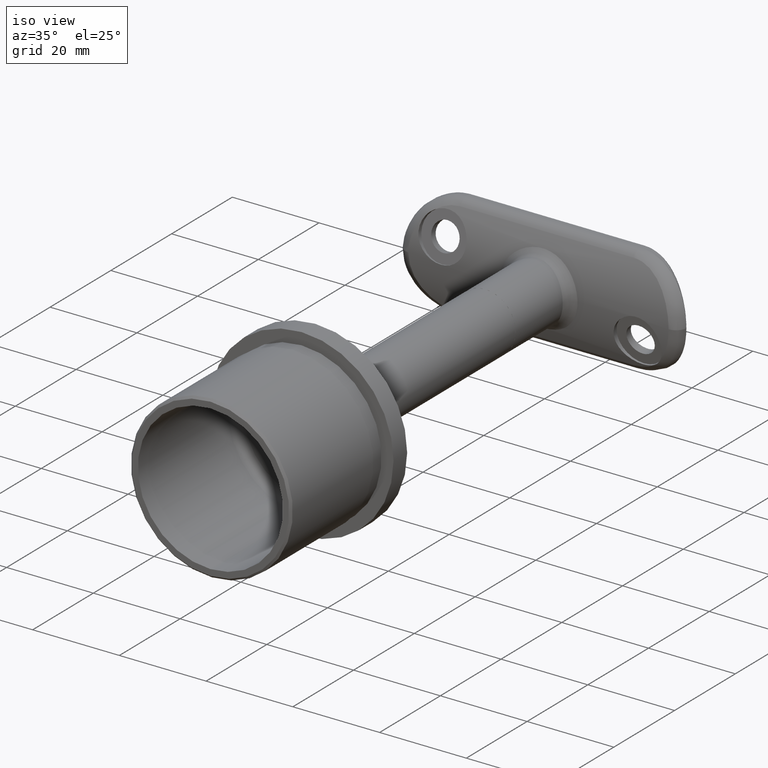
[diagram: clean part render]
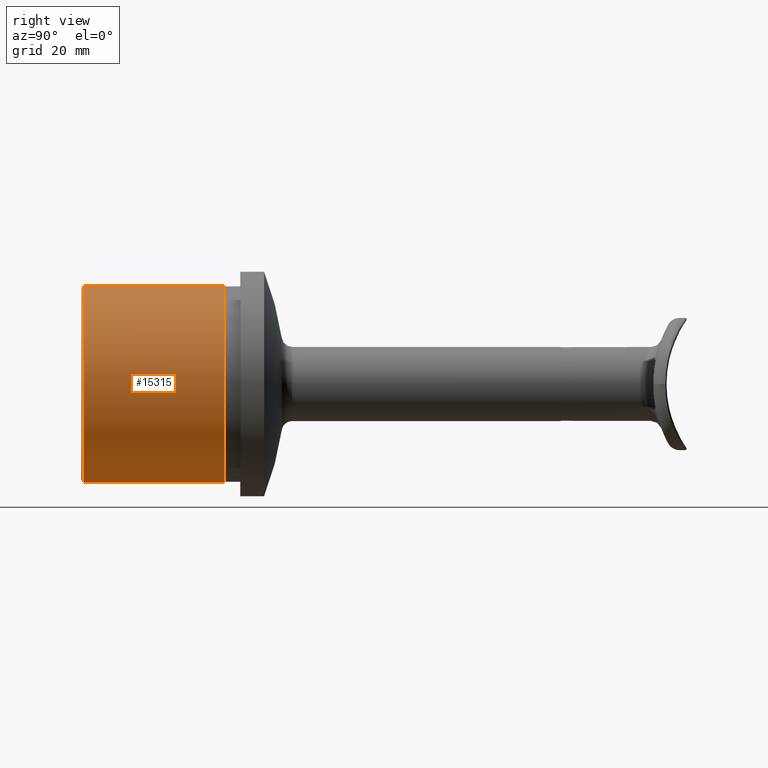
[diagram: tour spotlight — one face highlighted and labeled with its STEP entity id]
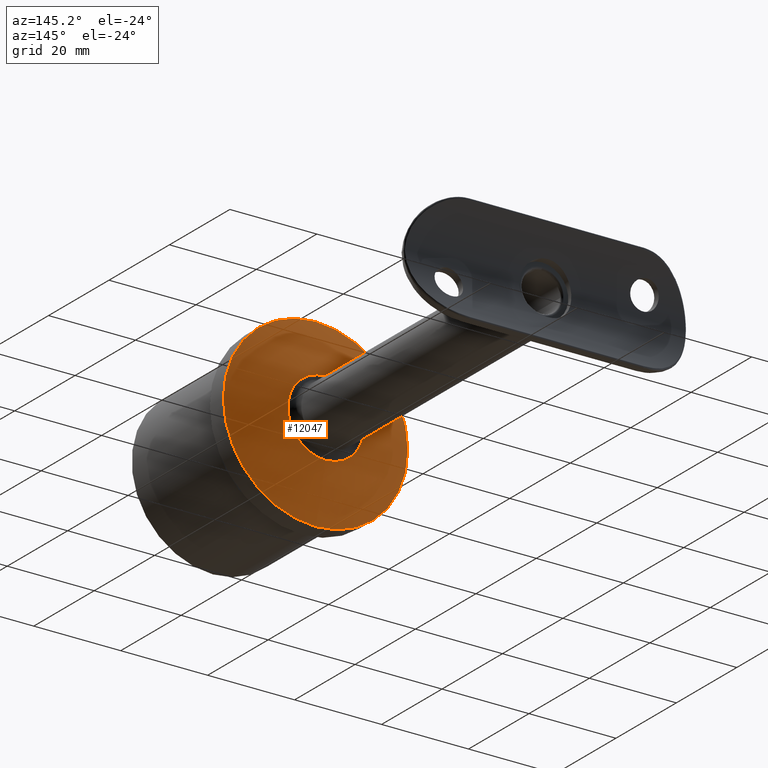
[diagram: tour spotlight — one face highlighted and labeled with its STEP entity id]
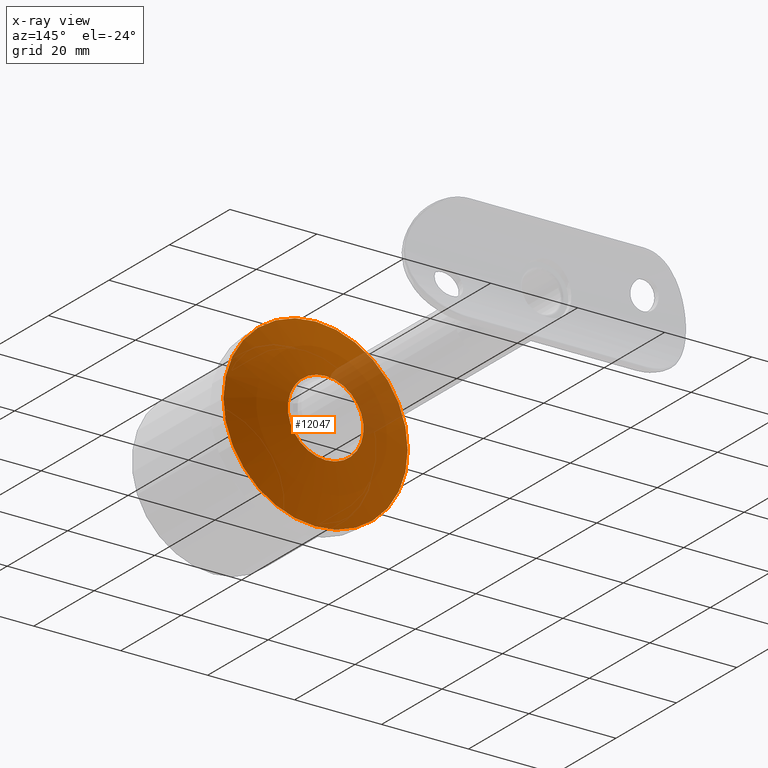
[diagram: x-ray of the same camera — body ghosted, this tour face saturated]
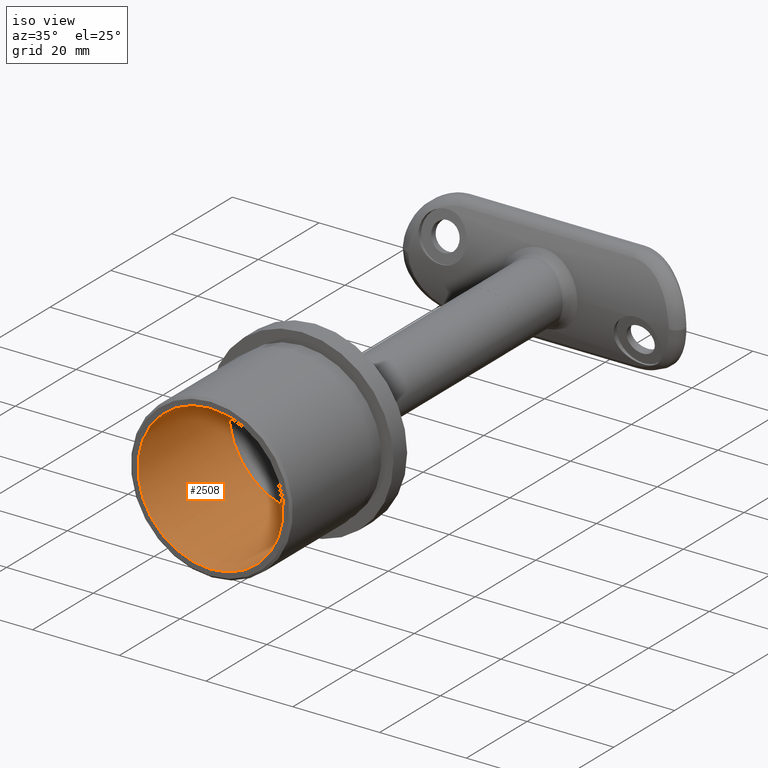
[diagram: tour spotlight — one face highlighted and labeled with its STEP entity id]
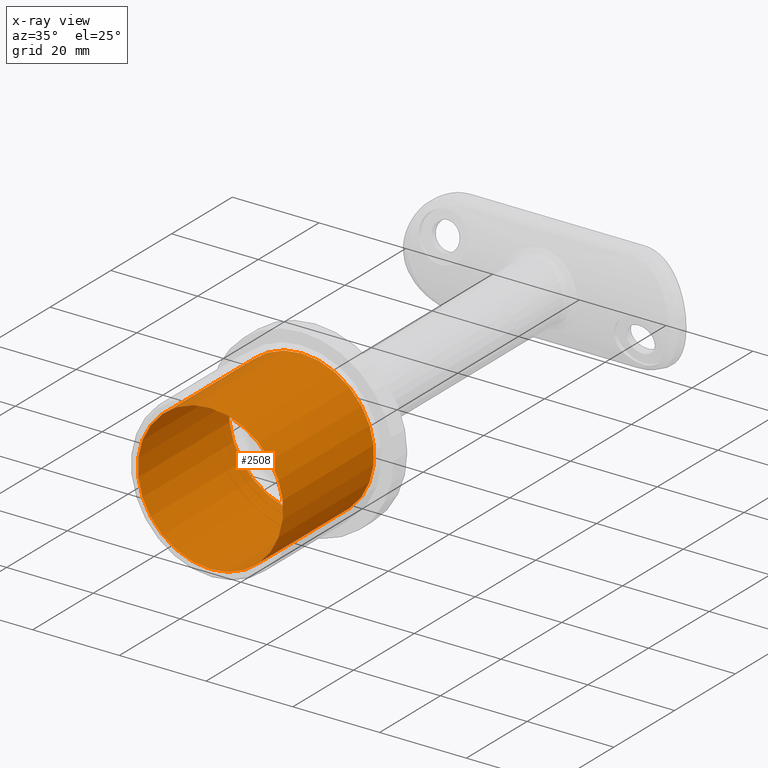
[diagram: x-ray of the same camera — body ghosted, this tour face saturated]
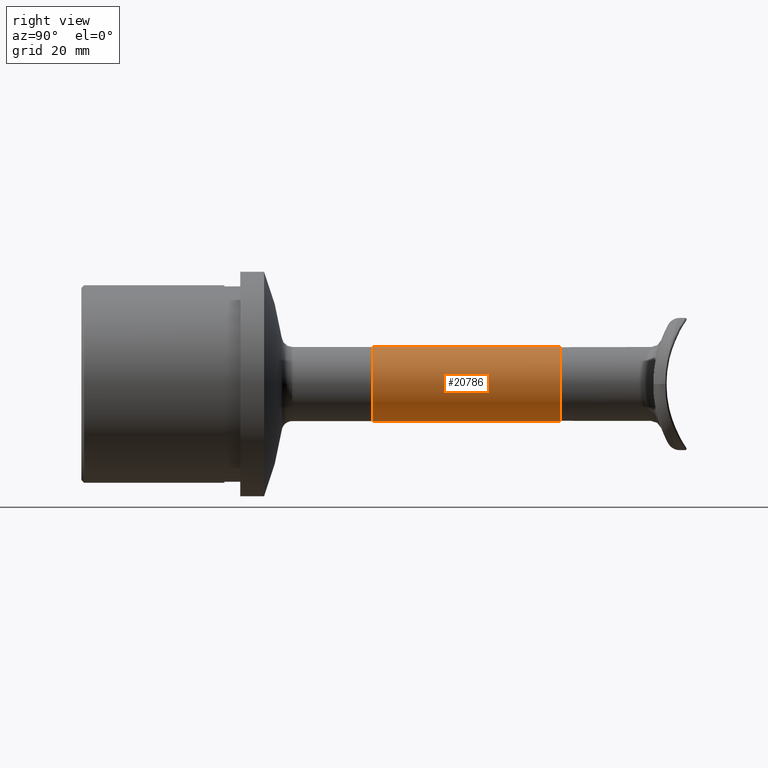
[diagram: tour spotlight — one face highlighted and labeled with its STEP entity id]
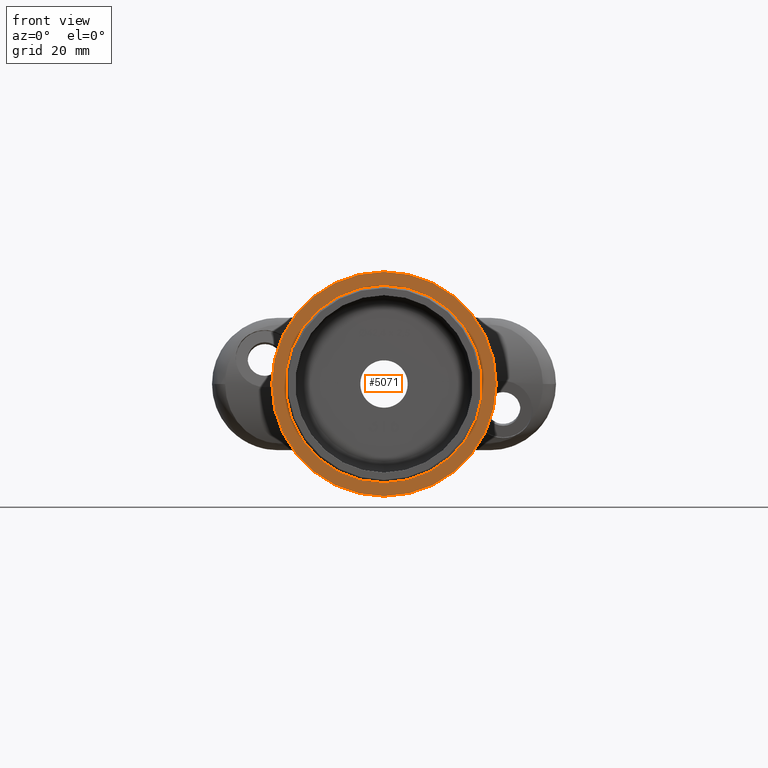
[diagram: tour spotlight — one face highlighted and labeled with its STEP entity id]
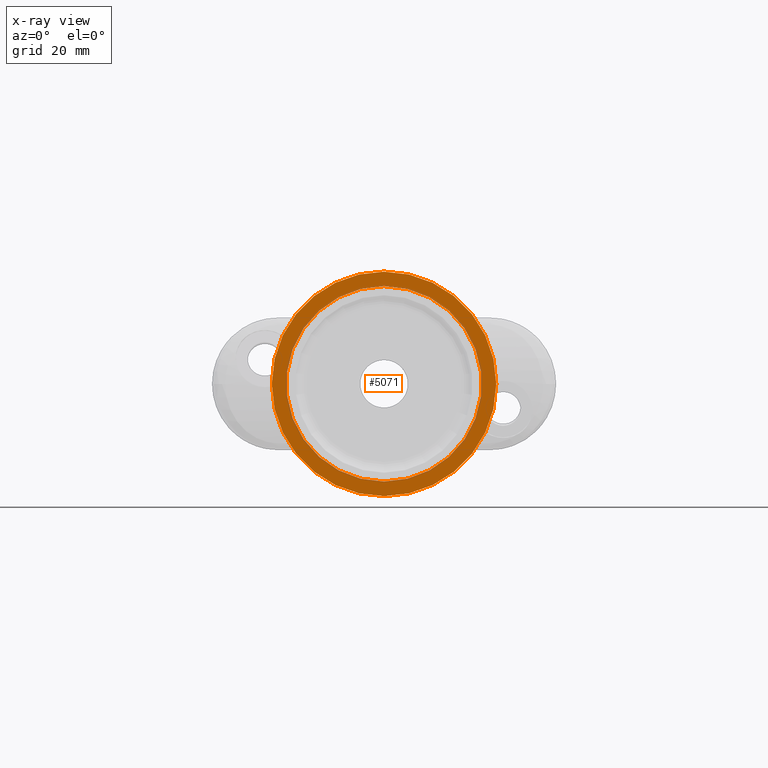
[diagram: x-ray of the same camera — body ghosted, this tour face saturated]
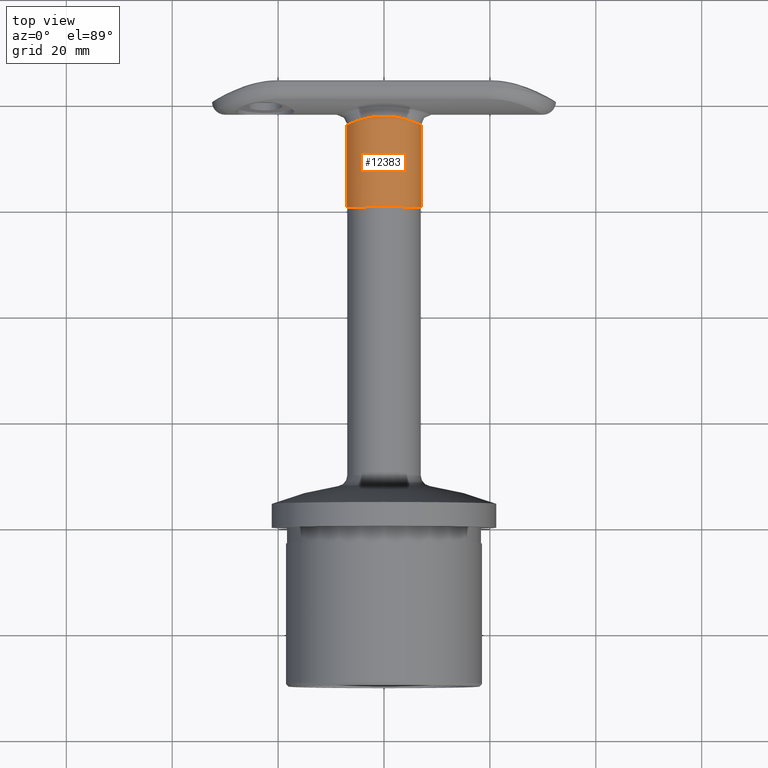
[diagram: tour spotlight — one face highlighted and labeled with its STEP entity id]
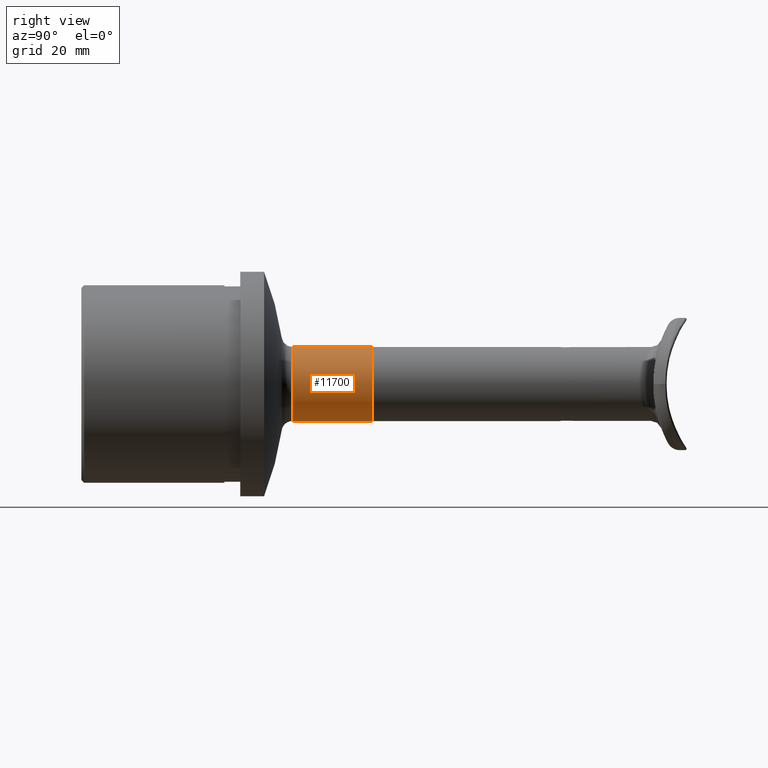
[diagram: tour spotlight — one face highlighted and labeled with its STEP entity id]
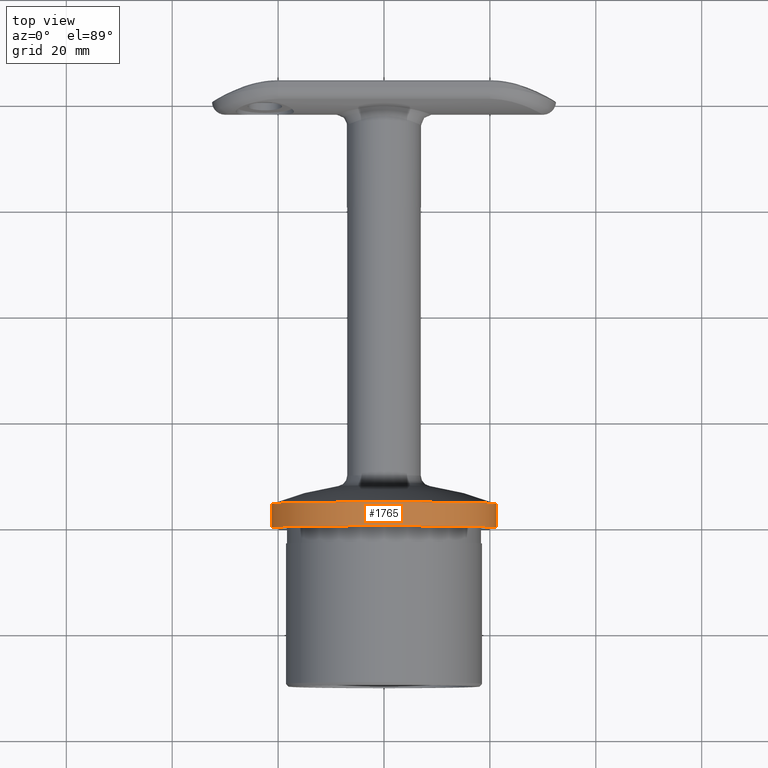
[diagram: tour spotlight — one face highlighted and labeled with its STEP entity id]
A machine part: a face-by-face anatomy tour. The part has 511 B-rep faces; the first image is the clean iso view, then the 8 largest visible faces are spotlighted one at a time (largest first), each with its STEP entity span.

Face 1 — right view, entity #15315. In plain terms, the highlighted cylindrical surface (bore or boss wall) has radius 18.65 mm, axis along (-0, -1, -0).
Definition (entity closure, byte-faithful):
#986 = FACE_OUTER_BOUND ( 'NONE', #21821, .T. ) ;
#3090 = DIRECTION ( 'NONE',  ( -0.0000000000000000000, -1.000000000000000000, -0.0000000000000000000 ) ) ;
#3521 = AXIS2_PLACEMENT_3D ( 'NONE', #13133, #3090, #5031 ) ;
#4320 = CARTESIAN_POINT ( 'NONE',  ( 0.0000000000000000000, 0.0000000000000000000, 0.0000000000000000000 ) ) ;
#4771 = AXIS2_PLACEMENT_3D ( 'NONE', #4320, #25005, #8230 ) ;
#5031 = DIRECTION ( 'NONE',  ( 0.0000000000000000000, 0.0000000000000000000, -1.000000000000000000 ) ) ;
#5936 = EDGE_CURVE ( 'NONE', #17513, #17513, #7242, .T. ) ;
#7047 = FACE_OUTER_BOUND ( 'NONE', #7690, .T. ) ;
#7147 = CARTESIAN_POINT ( 'NONE',  ( 0.0000000000000000000, -29.49999999999999600, -18.64999999999999900 ) ) ;
#7242 = CIRCLE ( 'NONE', #3521, 18.64999999999999900 ) ;
#7690 = EDGE_LOOP ( 'NONE', ( #17841 ) ) ;
#8011 = AXIS2_PLACEMENT_3D ( 'NONE', #24884, #13242, #15212 ) ;
#8214 = CIRCLE ( 'NONE', #8011, 18.64999999999999900 ) ;
#8230 = DIRECTION ( 'NONE',  ( 0.0000000000000000000, 0.0000000000000000000, -1.000000000000000000 ) ) ;
#10969 = CARTESIAN_POINT ( 'NONE',  ( 0.0000000000000000000, -3.000000000000000400, -18.64999999999999900 ) ) ;
#11246 = ORIENTED_EDGE ( 'NONE', *, *, #18087, .T. ) ;
#13133 = CARTESIAN_POINT ( 'NONE',  ( 0.0000000000000000000, -29.49999999999999600, 0.0000000000000000000 ) ) ;
#13242 = DIRECTION ( 'NONE',  ( -0.0000000000000000000, -1.000000000000000000, -0.0000000000000000000 ) ) ;
#15212 = DIRECTION ( 'NONE',  ( 0.0000000000000000000, 0.0000000000000000000, -1.000000000000000000 ) ) ;
#15315 = ADVANCED_FACE ( 'NONE', ( #986, #7047 ), #23490, .T. ) ;
#17513 = VERTEX_POINT ( 'NONE', #7147 ) ;
#17801 = VERTEX_POINT ( 'NONE', #10969 ) ;
#17841 = ORIENTED_EDGE ( 'NONE', *, *, #5936, .F. ) ;
#18087 = EDGE_CURVE ( 'NONE', #17801, #17801, #8214, .T. ) ;
#21821 = EDGE_LOOP ( 'NONE', ( #11246 ) ) ;
#23490 = CYLINDRICAL_SURFACE ( 'NONE', #4771, 18.64999999999999900 ) ;
#24884 = CARTESIAN_POINT ( 'NONE',  ( 0.0000000000000000000, -3.000000000000000400, 0.0000000000000000000 ) ) ;
#25005 = DIRECTION ( 'NONE',  ( -0.0000000000000000000, -1.000000000000000000, -0.0000000000000000000 ) ) ;

Face 2 — auxiliary view, entity #12047. An x-ray twin of the same camera follows (body ghosted, this face saturated) — the face is partly hidden behind the body. In plain terms, the highlighted toroidal blend (fillet) surface has major radius 0.0602 mm and minor (blend) radius 58 mm.
Definition (entity closure, byte-faithful):
#3010 = FACE_OUTER_BOUND ( 'NONE', #7909, .T. ) ;
#3454 = CARTESIAN_POINT ( 'NONE',  ( 0.0000000000000000000, 4.500000000000000000, 0.0000000000000000000 ) ) ;
#4129 = AXIS2_PLACEMENT_3D ( 'NONE', #22544, #18395, #24496 ) ;
#5121 = FACE_OUTER_BOUND ( 'NONE', #9564, .T. ) ;
#5898 = AXIS2_PLACEMENT_3D ( 'NONE', #3454, #7807, #24903 ) ;
#7807 = DIRECTION ( 'NONE',  ( -0.0000000000000000000, -1.000000000000000000, -0.0000000000000000000 ) ) ;
#7909 = EDGE_LOOP ( 'NONE', ( #12242 ) ) ;
#8333 = CARTESIAN_POINT ( 'NONE',  ( 0.0000000000000000000, 7.842324693768498300, -8.702006068648779900 ) ) ;
#9564 = EDGE_LOOP ( 'NONE', ( #14257 ) ) ;
#12047 = ADVANCED_FACE ( 'NONE', ( #3010, #5121 ), #14893, .T. ) ;
#12242 = ORIENTED_EDGE ( 'NONE', *, *, #16057, .T. ) ;
#12499 = CIRCLE ( 'NONE', #4129, 8.702006068648779900 ) ;
#13820 = VERTEX_POINT ( 'NONE', #8333 ) ;
#14257 = ORIENTED_EDGE ( 'NONE', *, *, #17613, .F. ) ;
#14334 = DIRECTION ( 'NONE',  ( -0.0000000000000000000, -1.000000000000000000, -0.0000000000000000000 ) ) ;
#14893 = TOROIDAL_SURFACE ( 'NONE', #15512, 0.06018205946337756900, 58.00000000000000700 ) ;
#15512 = AXIS2_PLACEMENT_3D ( 'NONE', #23952, #14334, #16121 ) ;
#16057 = EDGE_CURVE ( 'NONE', #13820, #13820, #12499, .T. ) ;
#16121 = DIRECTION ( 'NONE',  ( 0.0000000000000000000, 0.0000000000000000000, -1.000000000000000000 ) ) ;
#17613 = EDGE_CURVE ( 'NONE', #21745, #21745, #19204, .T. ) ;
#18395 = DIRECTION ( 'NONE',  ( -0.0000000000000000000, -1.000000000000000000, -0.0000000000000000000 ) ) ;
#19204 = CIRCLE ( 'NONE', #5898, 21.19999999999999600 ) ;
#21745 = VERTEX_POINT ( 'NONE', #24830 ) ;
#22544 = CARTESIAN_POINT ( 'NONE',  ( 0.0000000000000000000, 7.842324693768498300, 0.0000000000000000000 ) ) ;
#23952 = CARTESIAN_POINT ( 'NONE',  ( 0.0000000000000000000, -49.51025918694491400, 0.0000000000000000000 ) ) ;
#24496 = DIRECTION ( 'NONE',  ( 0.0000000000000000000, 0.0000000000000000000, -1.000000000000000000 ) ) ;
#24830 = CARTESIAN_POINT ( 'NONE',  ( 0.0000000000000000000, 4.500000000000000000, -21.19999999999999600 ) ) ;
#24903 = DIRECTION ( 'NONE',  ( 0.0000000000000000000, 0.0000000000000000000, -1.000000000000000000 ) ) ;

Face 3 — iso view, entity #2508. An x-ray twin of the same camera follows (body ghosted, this face saturated) — the face is partly hidden behind the body. In plain terms, the highlighted cylindrical surface (bore or boss wall) has radius 16.75 mm, axis along (-0, -1, -0).
Definition (entity closure, byte-faithful):
#453 = AXIS2_PLACEMENT_3D ( 'NONE', #16193, #18418, #12532 ) ;
#1024 = FACE_OUTER_BOUND ( 'NONE', #14233, .T. ) ;
#2508 = ADVANCED_FACE ( 'NONE', ( #5865, #1024 ), #11352, .F. ) ;
#3062 = CIRCLE ( 'NONE', #17480, 16.75000000000000400 ) ;
#4067 = VERTEX_POINT ( 'NONE', #9259 ) ;
#4895 = AXIS2_PLACEMENT_3D ( 'NONE', #22451, #24238, #20572 ) ;
#5865 = FACE_OUTER_BOUND ( 'NONE', #9181, .T. ) ;
#9179 = ORIENTED_EDGE ( 'NONE', *, *, #10439, .T. ) ;
#9181 = EDGE_LOOP ( 'NONE', ( #9179 ) ) ;
#9259 = CARTESIAN_POINT ( 'NONE',  ( 0.0000000000000000000, 4.770489558936219500E-015, -16.75000000000000700 ) ) ;
#10439 = EDGE_CURVE ( 'NONE', #22662, #22662, #3062, .T. ) ;
#11352 = CYLINDRICAL_SURFACE ( 'NONE', #453, 16.75000000000000700 ) ;
#12532 = DIRECTION ( 'NONE',  ( 0.0000000000000000000, 0.0000000000000000000, -1.000000000000000000 ) ) ;
#14233 = EDGE_LOOP ( 'NONE', ( #17089 ) ) ;
#15060 = DIRECTION ( 'NONE',  ( -0.0000000000000000000, -1.000000000000000000, -0.0000000000000000000 ) ) ;
#15251 = CARTESIAN_POINT ( 'NONE',  ( 0.0000000000000000000, -29.99999999999999600, -16.75000000000000400 ) ) ;
#16193 = CARTESIAN_POINT ( 'NONE',  ( 0.0000000000000000000, 0.0000000000000000000, 0.0000000000000000000 ) ) ;
#16674 = DIRECTION ( 'NONE',  ( 0.0000000000000000000, 0.0000000000000000000, -1.000000000000000000 ) ) ;
#16823 = CIRCLE ( 'NONE', #4895, 16.75000000000000700 ) ;
#17089 = ORIENTED_EDGE ( 'NONE', *, *, #19735, .F. ) ;
#17480 = AXIS2_PLACEMENT_3D ( 'NONE', #24407, #15060, #16674 ) ;
#18418 = DIRECTION ( 'NONE',  ( -0.0000000000000000000, -1.000000000000000000, -0.0000000000000000000 ) ) ;
#19735 = EDGE_CURVE ( 'NONE', #4067, #4067, #16823, .T. ) ;
#20572 = DIRECTION ( 'NONE',  ( 0.0000000000000000000, 0.0000000000000000000, -1.000000000000000000 ) ) ;
#22451 = CARTESIAN_POINT ( 'NONE',  ( 0.0000000000000000000, 4.770489558936219500E-015, 0.0000000000000000000 ) ) ;
#22662 = VERTEX_POINT ( 'NONE', #15251 ) ;
#24238 = DIRECTION ( 'NONE',  ( -0.0000000000000000000, -1.000000000000000000, -0.0000000000000000000 ) ) ;
#24407 = CARTESIAN_POINT ( 'NONE',  ( 0.0000000000000000000, -29.99999999999999600, 0.0000000000000000000 ) ) ;

Face 4 — right view, entity #20786. In plain terms, the highlighted cylindrical surface (bore or boss wall) has radius 7 mm, axis along (-0, -1, -0).
Definition (entity closure, byte-faithful):
#1125 = CARTESIAN_POINT ( 'NONE',  ( 0.0000000000000000000, 0.0000000000000000000, 0.0000000000000000000 ) ) ;
#1622 = DIRECTION ( 'NONE',  ( 0.0000000000000000000, 0.0000000000000000000, -1.000000000000000000 ) ) ;
#1685 = CARTESIAN_POINT ( 'NONE',  ( 0.0000000000000000000, 17.75000000000000000, 0.0000000000000000000 ) ) ;
#2942 = EDGE_CURVE ( 'NONE', #11715, #11715, #13165, .T. ) ;
#4986 = DIRECTION ( 'NONE',  ( 0.0000000000000000000, 0.0000000000000000000, -1.000000000000000000 ) ) ;
#5404 = DIRECTION ( 'NONE',  ( -0.0000000000000000000, -1.000000000000000000, -0.0000000000000000000 ) ) ;
#6887 = CIRCLE ( 'NONE', #18996, 6.999999999999999100 ) ;
#7132 = CARTESIAN_POINT ( 'NONE',  ( 0.0000000000000000000, 17.75000000000000000, -6.999999999999999100 ) ) ;
#10629 = DIRECTION ( 'NONE',  ( -0.0000000000000000000, -1.000000000000000000, -0.0000000000000000000 ) ) ;
#10909 = CYLINDRICAL_SURFACE ( 'NONE', #18646, 6.999999999999999100 ) ;
#11536 = DIRECTION ( 'NONE',  ( -0.0000000000000000000, -1.000000000000000000, -0.0000000000000000000 ) ) ;
#11715 = VERTEX_POINT ( 'NONE', #17126 ) ;
#13165 = CIRCLE ( 'NONE', #16900, 6.999999999999999100 ) ;
#13773 = ORIENTED_EDGE ( 'NONE', *, *, #2942, .F. ) ;
#15205 = FACE_OUTER_BOUND ( 'NONE', #15349, .T. ) ;
#15272 = DIRECTION ( 'NONE',  ( 0.0000000000000000000, 0.0000000000000000000, -1.000000000000000000 ) ) ;
#15349 = EDGE_LOOP ( 'NONE', ( #13773 ) ) ;
#16900 = AXIS2_PLACEMENT_3D ( 'NONE', #25152, #5404, #1622 ) ;
#17029 = FACE_OUTER_BOUND ( 'NONE', #19333, .T. ) ;
#17126 = CARTESIAN_POINT ( 'NONE',  ( 0.0000000000000000000, -17.75000000000000000, -6.999999999999999100 ) ) ;
#18646 = AXIS2_PLACEMENT_3D ( 'NONE', #1125, #10629, #4986 ) ;
#18996 = AXIS2_PLACEMENT_3D ( 'NONE', #1685, #11536, #15272 ) ;
#19333 = EDGE_LOOP ( 'NONE', ( #20452 ) ) ;
#20452 = ORIENTED_EDGE ( 'NONE', *, *, #23196, .T. ) ;
#20786 = ADVANCED_FACE ( 'NONE', ( #17029, #15205 ), #10909, .T. ) ;
#23196 = EDGE_CURVE ( 'NONE', #24782, #24782, #6887, .T. ) ;
#24782 = VERTEX_POINT ( 'NONE', #7132 ) ;
#25152 = CARTESIAN_POINT ( 'NONE',  ( 0.0000000000000000000, -17.75000000000000000, 0.0000000000000000000 ) ) ;

Face 5 — front view, entity #5071. An x-ray twin of the same camera follows (body ghosted, this face saturated) — the face is partly hidden behind the body. In plain terms, the highlighted planar face has unit normal (0, -1, 0).
Definition (entity closure, byte-faithful):
#944 = AXIS2_PLACEMENT_3D ( 'NONE', #7585, #15431, #3578 ) ;
#2890 = VERTEX_POINT ( 'NONE', #7227 ) ;
#3460 = CARTESIAN_POINT ( 'NONE',  ( 0.0000000000000000000, -2.755455298081547200E-016, -18.45000000000000300 ) ) ;
#3578 = DIRECTION ( 'NONE',  ( 0.0000000000000000000, 0.0000000000000000000, -1.000000000000000000 ) ) ;
#3623 = FACE_BOUND ( 'NONE', #16499, .T. ) ;
#5071 = ADVANCED_FACE ( 'NONE', ( #20402, #3623 ), #17407, .T. ) ;
#5722 = DIRECTION ( 'NONE',  ( 0.0000000000000000000, 0.0000000000000000000, -1.000000000000000000 ) ) ;
#6624 = CARTESIAN_POINT ( 'NONE',  ( 0.0000000000000000000, 0.0000000000000000000, 0.0000000000000000000 ) ) ;
#7227 = CARTESIAN_POINT ( 'NONE',  ( 0.0000000000000000000, 0.0000000000000000000, -21.19999999999999900 ) ) ;
#7585 = CARTESIAN_POINT ( 'NONE',  ( 0.0000000000000000000, -2.755455298081547200E-016, 0.0000000000000000000 ) ) ;
#7606 = ORIENTED_EDGE ( 'NONE', *, *, #9149, .T. ) ;
#8573 = DIRECTION ( 'NONE',  ( 0.0000000000000000000, 0.0000000000000000000, -1.000000000000000000 ) ) ;
#9149 = EDGE_CURVE ( 'NONE', #2890, #2890, #23240, .T. ) ;
#9377 = DIRECTION ( 'NONE',  ( 0.0000000000000000000, -1.000000000000000000, -0.0000000000000000000 ) ) ;
#14388 = DIRECTION ( 'NONE',  ( -0.0000000000000000000, -1.000000000000000000, -0.0000000000000000000 ) ) ;
#15431 = DIRECTION ( 'NONE',  ( -0.0000000000000000000, -1.000000000000000000, -0.0000000000000000000 ) ) ;
#16022 = CIRCLE ( 'NONE', #944, 18.45000000000000300 ) ;
#16397 = AXIS2_PLACEMENT_3D ( 'NONE', #19275, #9377, #5722 ) ;
#16499 = EDGE_LOOP ( 'NONE', ( #25204 ) ) ;
#17407 = PLANE ( 'NONE',  #16397 ) ;
#19275 = CARTESIAN_POINT ( 'NONE',  ( 21.19999999999999900, -1.377727649040773600E-016, 0.0000000000000000000 ) ) ;
#19882 = AXIS2_PLACEMENT_3D ( 'NONE', #6624, #14388, #8573 ) ;
#20402 = FACE_OUTER_BOUND ( 'NONE', #23441, .T. ) ;
#23194 = EDGE_CURVE ( 'NONE', #24189, #24189, #16022, .T. ) ;
#23240 = CIRCLE ( 'NONE', #19882, 21.19999999999999900 ) ;
#23441 = EDGE_LOOP ( 'NONE', ( #7606 ) ) ;
#24189 = VERTEX_POINT ( 'NONE', #3460 ) ;
#25204 = ORIENTED_EDGE ( 'NONE', *, *, #23194, .F. ) ;

Face 6 — top view, entity #12383. In plain terms, the highlighted cylindrical surface (bore or boss wall) has radius 7 mm, axis along (-0, -1, 0).
Definition (entity closure, byte-faithful):
#227 = ORIENTED_EDGE ( 'NONE', *, *, #21959, .T. ) ;
#1114 = CARTESIAN_POINT ( 'NONE',  ( 6.999909411731638700, -2.872642075041737200, 0.2345862984384246800 ) ) ;
#1368 = CARTESIAN_POINT ( 'NONE',  ( 2.490158224044369400, -4.301276673048307400, -6.546131845910700500 ) ) ;
#1451 = CARTESIAN_POINT ( 'NONE',  ( -4.607859233063393800E-016, -4.499999999999999100, -6.999999999999999100 ) ) ;
#1532 = CARTESIAN_POINT ( 'NONE',  ( -7.000200422682374900, -2.872502189382401200, 0.2255414728217226500 ) ) ;
#1616 = CARTESIAN_POINT ( 'NONE',  ( -6.816786315046083000, -2.959439122996997600, -1.607755826174641900 ) ) ;
#1709 = CARTESIAN_POINT ( 'NONE',  ( 5.936373186264424900, -3.341065045824726600, 3.716240593954875900 ) ) ;
#1777 = CARTESIAN_POINT ( 'NONE',  ( -0.9290191957853236600, -4.478823101808206500, -6.953349937494258400 ) ) ;
#1862 = CARTESIAN_POINT ( 'NONE',  ( 6.053455122221843800, -3.293591860995591400, 3.522437837262338600 ) ) ;
#2046 = CARTESIAN_POINT ( 'NONE',  ( 0.0000000000000000000, -20.00000000000000400, 0.0000000000000000000 ) ) ;
#3018 = CARTESIAN_POINT ( 'NONE',  ( 6.635538021181604400, -3.043829519819358300, 2.276250853317898700 ) ) ;
#3268 = CARTESIAN_POINT ( 'NONE',  ( 6.760713961660934900, -2.985566148251353400, -1.829200982388909700 ) ) ;
#3346 = CARTESIAN_POINT ( 'NONE',  ( 6.818116902085984400, -2.958818162074963600, -1.602197569987893400 ) ) ;
#3436 = CARTESIAN_POINT ( 'NONE',  ( -5.264140665099830600, -3.593525955556253800, 4.619586125878790900 ) ) ;
#3520 = CARTESIAN_POINT ( 'NONE',  ( 5.109084871755959200, -3.647256692351311400, 4.790513019794397900 ) ) ;
#3600 = CARTESIAN_POINT ( 'NONE',  ( -5.270513910573571400, -3.594135940656932900, -4.628662786879915300 ) ) ;
#3680 = CARTESIAN_POINT ( 'NONE',  ( -0.4694532894504587800, -4.500000000000000000, -6.999999999999998200 ) ) ;
#4689 = VERTEX_POINT ( 'NONE', #14882 ) ;
#4883 = CARTESIAN_POINT ( 'NONE',  ( 6.988181002263559100, -2.878295714481466900, 0.4689060662934520500 ) ) ;
#4972 = CARTESIAN_POINT ( 'NONE',  ( 6.269653895942179900, -3.203522054554125200, 3.121430322661118400 ) ) ;
#5316 = CARTESIAN_POINT ( 'NONE',  ( -0.006933464618764929300, -4.505144963743670200, 7.011401873481704100 ) ) ;
#5401 = CARTESIAN_POINT ( 'NONE',  ( 5.684569237821150100, -3.439420853473625700, 4.091044284675342100 ) ) ;
#5486 = CARTESIAN_POINT ( 'NONE',  ( -5.558744282339648500, -3.488619862935580200, -4.278906608859802700 ) ) ;
#5573 = CARTESIAN_POINT ( 'NONE',  ( -2.491226067761996600, -4.301096867787243200, -6.545705673712373800 ) ) ;
#5658 = CARTESIAN_POINT ( 'NONE',  ( -6.999591084280671000, -2.872795091401013000, -0.4694936715216643800 ) ) ;
#6343 = DIRECTION ( 'NONE',  ( 0.0000000000000000000, 0.0000000000000000000, -1.000000000000000000 ) ) ;
#6870 = CARTESIAN_POINT ( 'NONE',  ( 6.906631489782594000, -2.917219993794301700, 1.162473035872345600 ) ) ;
#7109 = CARTESIAN_POINT ( 'NONE',  ( 1.829163371532341200, -4.393761307549513400, -6.760733533712380200 ) ) ;
#7190 = CARTESIAN_POINT ( 'NONE',  ( 6.371920059809156100, -3.159550856976102400, -2.907008952231421100 ) ) ;
#7243 = CARTESIAN_POINT ( 'NONE',  ( 0.0000000000000000000, 0.0000000000000000000, 0.0000000000000000000 ) ) ;
#7275 = CARTESIAN_POINT ( 'NONE',  ( -6.772065183107182300, -2.980459231567705200, 1.830644280186800100 ) ) ;
#7363 = CARTESIAN_POINT ( 'NONE',  ( -1.163693337793879200, -4.458083097608102300, 6.906488061095763500 ) ) ;
#7441 = EDGE_LOOP ( 'NONE', ( #20143 ) ) ;
#7452 = CARTESIAN_POINT ( 'NONE',  ( -0.9311591547595929900, -4.473820866853532900, 6.941676963200999100 ) ) ;
#7529 = CARTESIAN_POINT ( 'NONE',  ( -6.282323227200501800, -3.198864608148877900, -3.120832025832782600 ) ) ;
#7607 = CARTESIAN_POINT ( 'NONE',  ( -6.066001590198316900, -3.290365101981241700, 3.522544827056138600 ) ) ;
#8332 = B_SPLINE_CURVE_WITH_KNOTS ( 'NONE', 3,
 ( #1451, #8897, #22445, #18870, #7109, #12813, #1368, #11027, #14858, #9144, #18784, #24477, #14949, #15046, #20725, #9060, #7190, #22775, #10866, #3268, #3346, #11122, #14704, #1114, #4883, #20485, #6870, #24392, #3018, #16660, #4972, #1862, #1709, #5401, #19300, #11554, #3520, #15450, #15131, #24887, #15293, #19129, #23210, #25145, #15383, #11475, #5316, #13499, #7452, #7363, #13248, #19206, #19051, #11390, #11205, #13325, #21081, #22956, #20986, #3436, #16995, #17079, #7607, #9233, #18954, #7275, #9318, #11295, #25065, #1532, #5658, #21239, #1616, #9486, #15214, #9577, #7529, #17183, #5486, #3600, #9393, #23121, #23050, #24972, #13413, #17259, #5573, #20910, #17336, #21164, #1777, #3680, #22860 ),
 .UNSPECIFIED., .T., .F.,
 ( 4, 2, 2, 2, 2, 2, 2, 2, 2, 2, 2, 2, 2, 2, 2, 2, 2, 2, 2, 2, 2, 2, 2, 1, 2, 2, 2, 2, 2, 2, 2, 2, 2, 2, 2, 2, 2, 2, 2, 2, 2, 2, 2, 2, 2, 2, 4 ),
 ( 0.0000000000000000000, 0.001408358258467836500, 0.002112537387701754700, 0.002816716516935672100, 0.004225074775403509300, 0.005633433033871348600, 0.007041791292339186200, 0.007745970421573105000, 0.008450149550807025500, 0.009154328680040943500, 0.009858507809274863100, 0.01126686606774270100, 0.01197104519697661900, 0.01267522432621053700, 0.01408358258467837800, 0.01478776171391229400, 0.01549194084314621200, 0.01619611997238013300, 0.01690029910161405500, 0.01830865736008189400, 0.01971701561854973300, 0.02112537387701756900, 0.02182955300625149400, 0.02253373213548541200, 0.02323791126471933300, 0.02394209039395324800, 0.02535044865242108700, 0.02605462778165500800, 0.02675880691088893000, 0.02816716516935676900, 0.02887134429859069100, 0.02957552342782460500, 0.03098388168629244400, 0.03239223994476028700, 0.03309641907399420900, 0.03380059820322813700, 0.03520895646169597300, 0.03591313559092990100, 0.03661731472016382200, 0.03802567297863166500, 0.03943403123709950800, 0.04013821036633342900, 0.04084238949556735100, 0.04225074775403519400, 0.04295492688326912200, 0.04365910601250304300, 0.04506746427097088600 ),
 .UNSPECIFIED. ) ;
#8341 = AXIS2_PLACEMENT_3D ( 'NONE', #2046, #16387, #6343 ) ;
#8788 = EDGE_LOOP ( 'NONE', ( #227 ) ) ;
#8897 = CARTESIAN_POINT ( 'NONE',  ( 0.4694532894504578300, -4.499999999999999100, -7.000000000000000000 ) ) ;
#9060 = CARTESIAN_POINT ( 'NONE',  ( 6.274007276048029000, -3.201671412104953000, -3.112691336076122400 ) ) ;
#9144 = CARTESIAN_POINT ( 'NONE',  ( 4.277739358642404200, -3.909441630860597700, -5.559360802511117000 ) ) ;
#9233 = CARTESIAN_POINT ( 'NONE',  ( -6.281899331840400600, -3.199076922441497700, 3.122708249272411000 ) ) ;
#9318 = CARTESIAN_POINT ( 'NONE',  ( -6.908173732859610000, -2.916488981675068100, 1.153328664274329200 ) ) ;
#9393 = CARTESIAN_POINT ( 'NONE',  ( -4.793058746760304500, -3.751115247045549800, -5.106593470127967800 ) ) ;
#9486 = CARTESIAN_POINT ( 'NONE',  ( -6.759274587261018900, -2.986232246345153400, -1.834524943347119600 ) ) ;
#9577 = CARTESIAN_POINT ( 'NONE',  ( -6.545759100015677000, -3.083236612946022200, -2.490950063867920100 ) ) ;
#10633 = AXIS2_PLACEMENT_3D ( 'NONE', #7243, #24691, #13301 ) ;
#10866 = CARTESIAN_POINT ( 'NONE',  ( 6.625593773303903900, -3.047300914335949500, -2.270404513853466500 ) ) ;
#11024 = CIRCLE ( 'NONE', #8341, 7.000000000000002700 ) ;
#11027 = CARTESIAN_POINT ( 'NONE',  ( 3.125659866461946800, -4.189805897191446200, -6.280220609061217400 ) ) ;
#11122 = CARTESIAN_POINT ( 'NONE',  ( 6.954729999129617600, -2.894601758353523700, -0.9201908575667195900 ) ) ;
#11205 = CARTESIAN_POINT ( 'NONE',  ( -3.521322407358642000, -4.099440045466224100, 6.054152966513053800 ) ) ;
#11295 = CARTESIAN_POINT ( 'NONE',  ( -6.942620723381836000, -2.900072199549332800, 0.9243901754018383200 ) ) ;
#11390 = CARTESIAN_POINT ( 'NONE',  ( -3.117951177375631700, -4.186782320249287500, 6.271432060861922500 ) ) ;
#11475 = CARTESIAN_POINT ( 'NONE',  ( 0.4549681177559371000, -4.495059190542445300, 6.989051550866380000 ) ) ;
#11554 = CARTESIAN_POINT ( 'NONE',  ( 5.262481226145537100, -3.594100596208403200, 4.621412183793694300 ) ) ;
#12009 = VERTEX_POINT ( 'NONE', #19072 ) ;
#12383 = ADVANCED_FACE ( 'NONE', ( #15814, #14608 ), #15793, .T. ) ;
#12813 = CARTESIAN_POINT ( 'NONE',  ( 2.270888609335940600, -4.335206374244009500, -6.625437455565252900 ) ) ;
#13248 = CARTESIAN_POINT ( 'NONE',  ( -1.845406035542733300, -4.396944319073637300, 6.768272649200760300 ) ) ;
#13301 = DIRECTION ( 'NONE',  ( 0.0000000000000000000, 0.0000000000000000000, -1.000000000000000000 ) ) ;
#13325 = CARTESIAN_POINT ( 'NONE',  ( -3.718286210665426900, -4.052650694884904100, 5.935141905950994900 ) ) ;
#13413 = CARTESIAN_POINT ( 'NONE',  ( -3.524888044378705800, -4.102106028519294500, -6.064859955023342400 ) ) ;
#13499 = CARTESIAN_POINT ( 'NONE',  ( -0.4690035826892235400, -4.494644622338518600, 6.988130799602475700 ) ) ;
#14608 = FACE_OUTER_BOUND ( 'NONE', #7441, .T. ) ;
#14704 = CARTESIAN_POINT ( 'NONE',  ( 7.000179592460564300, -2.872512202201736200, -0.4610159311298284700 ) ) ;
#14858 = CARTESIAN_POINT ( 'NONE',  ( 3.524877050323275800, -4.102067694611872800, -6.064716673768005600 ) ) ;
#14882 = CARTESIAN_POINT ( 'NONE',  ( 0.0000000000000000000, -4.499999999999999100, -7.000000000000000900 ) ) ;
#14949 = CARTESIAN_POINT ( 'NONE',  ( 5.558271683112095300, -3.488788066672823700, -4.279425662879203800 ) ) ;
#15046 = CARTESIAN_POINT ( 'NONE',  ( 5.939378696092130200, -3.339873489690983200, -3.711569443140691600 ) ) ;
#15131 = CARTESIAN_POINT ( 'NONE',  ( 4.277476618353441400, -3.909514127977340900, 5.559556467112931200 ) ) ;
#15214 = CARTESIAN_POINT ( 'NONE',  ( -6.623743334628065000, -3.048137683698834500, -2.275807318453313400 ) ) ;
#15293 = CARTESIAN_POINT ( 'NONE',  ( 3.116270091217626900, -4.191681295174512400, 6.284777565461353400 ) ) ;
#15383 = CARTESIAN_POINT ( 'NONE',  ( 0.9167844760088106300, -4.474673417870623600, 6.943582768350206700 ) ) ;
#15450 = CARTESIAN_POINT ( 'NONE',  ( 4.626296825393803000, -3.805850900814066900, 5.272990665822594500 ) ) ;
#15793 = CYLINDRICAL_SURFACE ( 'NONE', #10633, 7.000000000000000900 ) ;
#15814 = FACE_OUTER_BOUND ( 'NONE', #8788, .T. ) ;
#16387 = DIRECTION ( 'NONE',  ( -0.0000000000000000000, -1.000000000000000000, -0.0000000000000000000 ) ) ;
#16660 = CARTESIAN_POINT ( 'NONE',  ( 6.369272272239423500, -3.160701236173345300, 2.912952353974642300 ) ) ;
#16995 = CARTESIAN_POINT ( 'NONE',  ( -5.552979245818887600, -3.489149483853736500, 4.268041050865626600 ) ) ;
#17079 = CARTESIAN_POINT ( 'NONE',  ( -5.688057482076699100, -3.438090867367365400, 4.086217862316989800 ) ) ;
#17183 = CARTESIAN_POINT ( 'NONE',  ( -6.067706431235572900, -3.289713915552221000, -3.520173067922987900 ) ) ;
#17259 = CARTESIAN_POINT ( 'NONE',  ( -3.125136711581385300, -4.189882631234942400, -6.280398146948581200 ) ) ;
#17336 = CARTESIAN_POINT ( 'NONE',  ( -1.829996136450099000, -4.393672172727637100, -6.760531627539373600 ) ) ;
#18784 = CARTESIAN_POINT ( 'NONE',  ( 4.633229053829801100, -3.803669131245268200, -5.266608336635276700 ) ) ;
#18870 = CARTESIAN_POINT ( 'NONE',  ( 1.606007185630875500, -4.418562511100651200, -6.817156453242791500 ) ) ;
#18954 = CARTESIAN_POINT ( 'NONE',  ( -6.637903793297023300, -3.042765664801203600, 2.269757532509545600 ) ) ;
#19051 = CARTESIAN_POINT ( 'NONE',  ( -2.912088517423188100, -4.227266642157720100, 6.369582098176440600 ) ) ;
#19072 = CARTESIAN_POINT ( 'NONE',  ( 0.0000000000000000000, -20.00000000000000400, -7.000000000000002700 ) ) ;
#19129 = CARTESIAN_POINT ( 'NONE',  ( 2.271204009637346500, -4.339449665918021300, 6.637107854732439800 ) ) ;
#19206 = CARTESIAN_POINT ( 'NONE',  ( -2.282002858337495600, -4.337790249610230300, 6.633234920414809100 ) ) ;
#19300 = CARTESIAN_POINT ( 'NONE',  ( 5.549846660955820400, -3.490306104308634100, 4.272044155662318800 ) ) ;
#20027 = EDGE_CURVE ( 'NONE', #12009, #12009, #11024, .T. ) ;
#20143 = ORIENTED_EDGE ( 'NONE', *, *, #20027, .F. ) ;
#20485 = CARTESIAN_POINT ( 'NONE',  ( 6.941384937195018700, -2.900661206945848800, 0.9336604163646473600 ) ) ;
#20725 = CARTESIAN_POINT ( 'NONE',  ( 6.058087085397379400, -3.291697643233090400, -3.514483677487837600 ) ) ;
#20910 = CARTESIAN_POINT ( 'NONE',  ( -2.273002524819757800, -4.334904756349431000, -6.624736467856323900 ) ) ;
#20986 = CARTESIAN_POINT ( 'NONE',  ( -5.110654738547362200, -3.646710627607352400, 4.788770688732710400 ) ) ;
#21081 = CARTESIAN_POINT ( 'NONE',  ( -4.283541546236092400, -3.907817439525917500, 5.554954452960918900 ) ) ;
#21164 = CARTESIAN_POINT ( 'NONE',  ( -1.606348229203923700, -4.418532050570578700, -6.817087601856138200 ) ) ;
#21239 = CARTESIAN_POINT ( 'NONE',  ( -6.953634735351533500, -2.895125406511628500, -0.9277832794918832200 ) ) ;
#21959 = EDGE_CURVE ( 'NONE', #4689, #4689, #8332, .T. ) ;
#22445 = CARTESIAN_POINT ( 'NONE',  ( 0.9296800768784526700, -4.478764068356410300, -6.953216500858193400 ) ) ;
#22775 = CARTESIAN_POINT ( 'NONE',  ( 6.547712657009955500, -3.082366551077242000, -2.485865092514774900 ) ) ;
#22860 = CARTESIAN_POINT ( 'NONE',  ( -4.607859233063393800E-016, -4.499999999999999100, -6.999999999999999100 ) ) ;
#22956 = CARTESIAN_POINT ( 'NONE',  ( -4.631149922050076900, -3.804316660093168200, 5.268483336132344000 ) ) ;
#23050 = CARTESIAN_POINT ( 'NONE',  ( -4.275971700441469500, -3.906151472876442800, -5.546847255882386000 ) ) ;
#23121 = CARTESIAN_POINT ( 'NONE',  ( -4.626096226676883900, -3.803330320879853200, -5.258391594831271800 ) ) ;
#23210 = CARTESIAN_POINT ( 'NONE',  ( 1.832653279783299700, -4.398494669377172700, 6.771810132463792300 ) ) ;
#24392 = CARTESIAN_POINT ( 'NONE',  ( 6.769820384508791200, -2.981501573593434300, 1.838787736699486900 ) ) ;
#24477 = CARTESIAN_POINT ( 'NONE',  ( 5.271594453655499300, -3.593776130274916700, -4.627555159364101600 ) ) ;
#24691 = DIRECTION ( 'NONE',  ( -0.0000000000000000000, -1.000000000000000000, -0.0000000000000000000 ) ) ;
#24887 = CARTESIAN_POINT ( 'NONE',  ( 3.524728718004882700, -4.102100370949760800, 6.064796929498072600 ) ) ;
#24972 = CARTESIAN_POINT ( 'NONE',  ( -4.091918035401704400, -3.956964852808321900, -5.684016827158121300 ) ) ;
#25065 = CARTESIAN_POINT ( 'NONE',  ( -6.988777331449167500, -2.878009023683005400, 0.4598598879361399100 ) ) ;
#25145 = CARTESIAN_POINT ( 'NONE',  ( 1.149088327121568400, -4.459180112052762500, 6.908950980068033800 ) ) ;

Face 7 — right view, entity #11700. In plain terms, the highlighted cylindrical surface (bore or boss wall) has radius 7 mm, axis along (-0, -1, -0).
Definition (entity closure, byte-faithful):
#1485 = CARTESIAN_POINT ( 'NONE',  ( 0.0000000000000000000, 25.00000000000000400, -7.000000000000000000 ) ) ;
#2896 = DIRECTION ( 'NONE',  ( 0.0000000000000000000, 0.0000000000000000000, -1.000000000000000000 ) ) ;
#3661 = CIRCLE ( 'NONE', #5703, 7.000000000000000000 ) ;
#4355 = ORIENTED_EDGE ( 'NONE', *, *, #10172, .T. ) ;
#5205 = AXIS2_PLACEMENT_3D ( 'NONE', #14558, #11239, #2896 ) ;
#5703 = AXIS2_PLACEMENT_3D ( 'NONE', #7949, #17519, #15456 ) ;
#7949 = CARTESIAN_POINT ( 'NONE',  ( 0.0000000000000000000, 25.00000000000000400, 0.0000000000000000000 ) ) ;
#8557 = CARTESIAN_POINT ( 'NONE',  ( 0.0000000000000000000, 0.0000000000000000000, 0.0000000000000000000 ) ) ;
#9304 = EDGE_CURVE ( 'NONE', #15380, #15380, #10429, .T. ) ;
#10172 = EDGE_CURVE ( 'NONE', #12634, #12634, #3661, .T. ) ;
#10429 = CIRCLE ( 'NONE', #5205, 6.999999999999993800 ) ;
#11239 = DIRECTION ( 'NONE',  ( -0.0000000000000000000, -1.000000000000000000, -0.0000000000000000000 ) ) ;
#11700 = ADVANCED_FACE ( 'NONE', ( #19496, #18272 ), #14304, .T. ) ;
#12611 = EDGE_LOOP ( 'NONE', ( #4355 ) ) ;
#12634 = VERTEX_POINT ( 'NONE', #1485 ) ;
#14206 = AXIS2_PLACEMENT_3D ( 'NONE', #8557, #22449, #18287 ) ;
#14304 = CYLINDRICAL_SURFACE ( 'NONE', #14206, 6.999999999999997300 ) ;
#14558 = CARTESIAN_POINT ( 'NONE',  ( 0.0000000000000000000, 9.820000000000000300, 0.0000000000000000000 ) ) ;
#15380 = VERTEX_POINT ( 'NONE', #23005 ) ;
#15456 = DIRECTION ( 'NONE',  ( 0.0000000000000000000, 0.0000000000000000000, -1.000000000000000000 ) ) ;
#16243 = ORIENTED_EDGE ( 'NONE', *, *, #9304, .F. ) ;
#17519 = DIRECTION ( 'NONE',  ( -0.0000000000000000000, -1.000000000000000000, -0.0000000000000000000 ) ) ;
#18272 = FACE_OUTER_BOUND ( 'NONE', #23958, .T. ) ;
#18287 = DIRECTION ( 'NONE',  ( 0.0000000000000000000, 0.0000000000000000000, -1.000000000000000000 ) ) ;
#19496 = FACE_OUTER_BOUND ( 'NONE', #12611, .T. ) ;
#22449 = DIRECTION ( 'NONE',  ( -0.0000000000000000000, -1.000000000000000000, -0.0000000000000000000 ) ) ;
#23005 = CARTESIAN_POINT ( 'NONE',  ( 0.0000000000000000000, 9.820000000000000300, -6.999999999999993800 ) ) ;
#23958 = EDGE_LOOP ( 'NONE', ( #16243 ) ) ;

Face 8 — top view, entity #1765. In plain terms, the highlighted cylindrical surface (bore or boss wall) has radius 21.2 mm, axis along (-0, -1, -0).
Definition (entity closure, byte-faithful):
#939 = AXIS2_PLACEMENT_3D ( 'NONE', #23409, #11750, #15812 ) ;
#1765 = ADVANCED_FACE ( 'NONE', ( #23844, #8580 ), #3118, .T. ) ;
#2890 = VERTEX_POINT ( 'NONE', #7227 ) ;
#3118 = CYLINDRICAL_SURFACE ( 'NONE', #939, 21.19999999999999600 ) ;
#3405 = ORIENTED_EDGE ( 'NONE', *, *, #9149, .F. ) ;
#3454 = CARTESIAN_POINT ( 'NONE',  ( 0.0000000000000000000, 4.500000000000000000, 0.0000000000000000000 ) ) ;
#5898 = AXIS2_PLACEMENT_3D ( 'NONE', #3454, #7807, #24903 ) ;
#6624 = CARTESIAN_POINT ( 'NONE',  ( 0.0000000000000000000, 0.0000000000000000000, 0.0000000000000000000 ) ) ;
#7227 = CARTESIAN_POINT ( 'NONE',  ( 0.0000000000000000000, 0.0000000000000000000, -21.19999999999999900 ) ) ;
#7807 = DIRECTION ( 'NONE',  ( -0.0000000000000000000, -1.000000000000000000, -0.0000000000000000000 ) ) ;
#8573 = DIRECTION ( 'NONE',  ( 0.0000000000000000000, 0.0000000000000000000, -1.000000000000000000 ) ) ;
#8580 = FACE_OUTER_BOUND ( 'NONE', #10179, .T. ) ;
#9149 = EDGE_CURVE ( 'NONE', #2890, #2890, #23240, .T. ) ;
#10179 = EDGE_LOOP ( 'NONE', ( #3405 ) ) ;
#11146 = EDGE_LOOP ( 'NONE', ( #24528 ) ) ;
#11750 = DIRECTION ( 'NONE',  ( -0.0000000000000000000, -1.000000000000000000, -0.0000000000000000000 ) ) ;
#14388 = DIRECTION ( 'NONE',  ( -0.0000000000000000000, -1.000000000000000000, -0.0000000000000000000 ) ) ;
#15812 = DIRECTION ( 'NONE',  ( 0.0000000000000000000, 0.0000000000000000000, -1.000000000000000000 ) ) ;
#17613 = EDGE_CURVE ( 'NONE', #21745, #21745, #19204, .T. ) ;
#19204 = CIRCLE ( 'NONE', #5898, 21.19999999999999600 ) ;
#19882 = AXIS2_PLACEMENT_3D ( 'NONE', #6624, #14388, #8573 ) ;
#21745 = VERTEX_POINT ( 'NONE', #24830 ) ;
#23240 = CIRCLE ( 'NONE', #19882, 21.19999999999999900 ) ;
#23409 = CARTESIAN_POINT ( 'NONE',  ( 0.0000000000000000000, 0.0000000000000000000, 0.0000000000000000000 ) ) ;
#23844 = FACE_OUTER_BOUND ( 'NONE', #11146, .T. ) ;
#24528 = ORIENTED_EDGE ( 'NONE', *, *, #17613, .T. ) ;
#24830 = CARTESIAN_POINT ( 'NONE',  ( 0.0000000000000000000, 4.500000000000000000, -21.19999999999999600 ) ) ;
#24903 = DIRECTION ( 'NONE',  ( 0.0000000000000000000, 0.0000000000000000000, -1.000000000000000000 ) ) ;